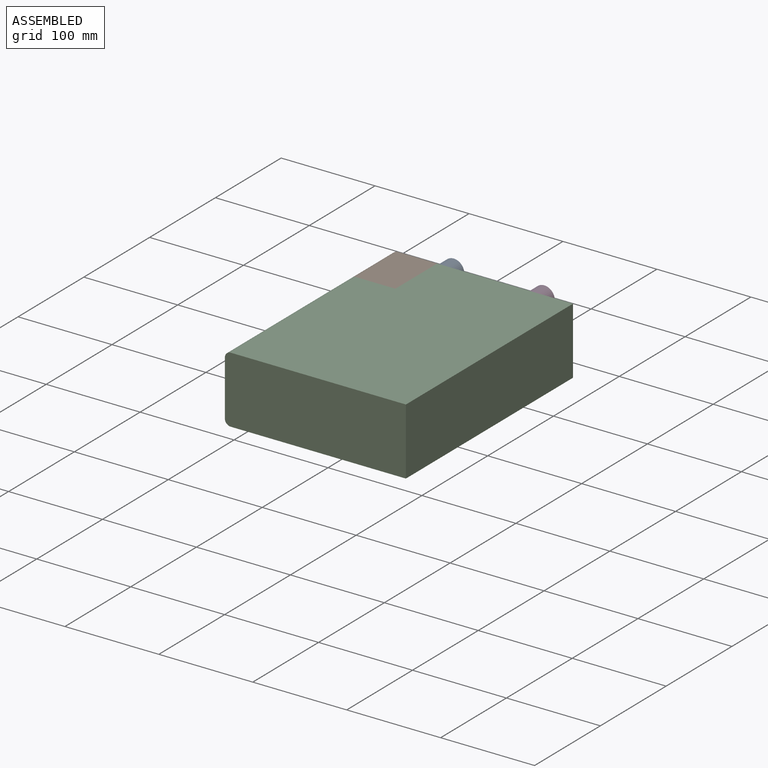
[diagram: assembled view]
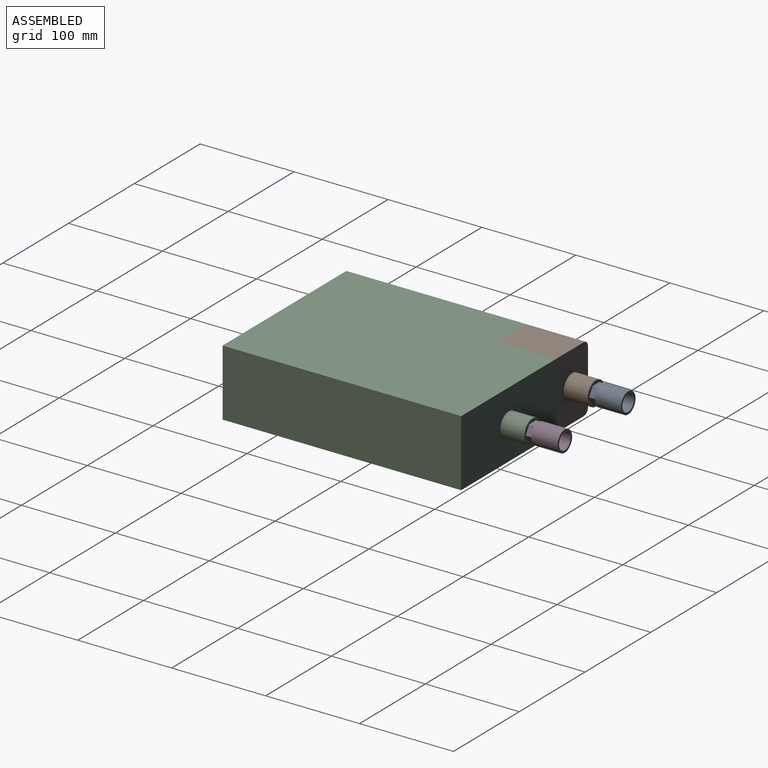
[diagram: assembled view, second angle]
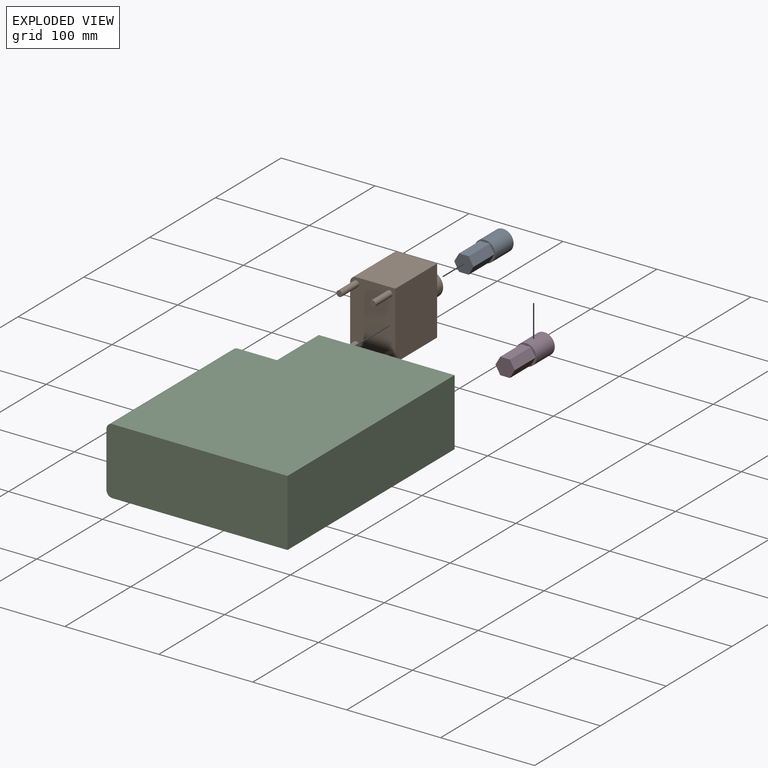
[diagram: exploded view]
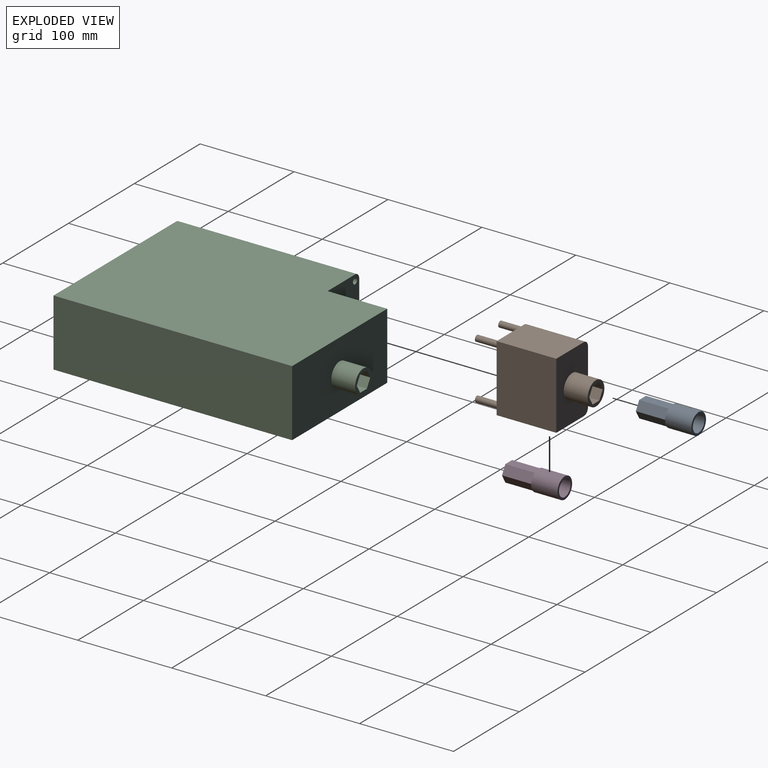
[diagram: exploded view, second angle]
ASSEMBLY  parts=4 mates=3
PART A: 12 faces, bbox 22.3x59.7x22.3 mm
  f0: plane 31.75x8.89mm, normal (-0.87,0,-0.5), area 325.9mm2, adj f1,f5,f6,f7
  f1: plane 31.75x8.89mm, normal (-0.87,0,0.5), area 325.9mm2, adj f0,f2,f6,f7
  f2: plane 31.75x10.27mm, normal (0,0,1), area 325.9mm2, adj f1,f3,f6,f7
  f3: plane 31.75x8.89mm, normal (0.87,0,0.5), area 325.9mm2, adj f2,f4,f6,f7
  f4: plane 31.75x8.89mm, normal (0.87,0,-0.5), area 325.9mm2, adj f3,f5,f6,f7
  f5: plane 31.75x10.27mm, normal (0,0,-1), area 325.9mm2, adj f0,f4,f6,f7
  f6: plane 20.53x17.78mm, normal (0,-1,0), area 273.8mm2, adj f0,f1,f2,f3,f4,f5
  f7: plane 22.3x22.3mm, normal (0,-1,0), area 116.7mm2, adj f0,f1,f2,f3,f4,f5,f8
  f8: cylinder r=11.15mm len=27.94mm, axis (0,-1,0), area 1957.3mm2, adj f7,f10
  f9: cylinder r=8.79mm len=25.4mm, axis (0,-1,0), area 1403.1mm2, adj f10,f11
  f10: plane 22.3x22.3mm, normal (0,1,0), area 147.7mm2, adj f8,f9
  f11: plane 17.58x17.58mm, normal (0,1,0), area 242.8mm2, adj f9
PART B: 25 faces, bbox 48.2x114.3x71.2 mm
  f0: plane 63.5x41.84mm, normal (0,0,-1), area 2656.9mm2, adj f1,f2,f4,f23
  f1: plane 71.24x63.5mm, normal (1,0,0), area 4523.9mm2, adj f0,f2,f4,f5
  f2: plane 71.24x48.19mm, normal (0,1,0), area 2909.2mm2, adj f0,f1,f3,f5,f12,f23,f24
  f3: plane 63.5x58.54mm, normal (-1,0,0), area 3717.5mm2, adj f2,f4,f23,f24
  f4: plane 71.24x48.19mm, normal (0,-1,0), area 3289.2mm2, adj f0,f1,f3,f5,f15,f17,f19,f21
  f5: plane 63.5x41.84mm, normal (0,0,1), area 2656.9mm2, adj f1,f2,f4,f24
  f6: plane 25.4x10.27mm, normal (0,0,1), area 260.7mm2, adj f7,f11,f13,f14
  f7: plane 25.4x8.89mm, normal (-0.87,0,0.5), area 260.7mm2, adj f6,f8,f13,f14
  f8: plane 25.4x8.89mm, normal (-0.87,0,-0.5), area 260.7mm2, adj f7,f9,f13,f14
  f9: plane 25.4x10.27mm, normal (0,0,-1), area 260.7mm2, adj f8,f10,f13,f14
  f10: plane 25.4x8.89mm, normal (0.87,0,-0.5), area 260.7mm2, adj f9,f11,f13,f14
  f11: plane 25.4x8.89mm, normal (0.87,0,0.5), area 260.7mm2, adj f6,f10,f13,f14
  f12: cylinder r=12.7mm len=25.4mm, axis (0,-1,0), area 2026.8mm2, adj f2,f13
  f13: plane 25.4x25.4mm, normal (0,1,0), area 232.9mm2, adj f6,f7,f8,f9,f10,f11,f12
  f14: plane 20.53x17.78mm, normal (0,1,0), area 273.8mm2, adj f6,f7,f8,f9,f10,f11
  f15: cylinder r=3.17mm len=25.4mm, axis (0,1,0), area 506.7mm2, adj f4,f16
  f16: plane 6.35x6.35mm, normal (0,-1,0), area 31.7mm2, adj f15
  f17: cylinder r=3.17mm len=25.4mm, axis (0,1,0), area 506.7mm2, adj f4,f18
  f18: plane 6.35x6.35mm, normal (0,-1,0), area 31.7mm2, adj f17
  f19: cylinder r=3.17mm len=25.4mm, axis (0,1,0), area 506.7mm2, adj f4,f20
  f20: plane 6.35x6.35mm, normal (0,-1,0), area 31.7mm2, adj f19
  f21: cylinder r=3.17mm len=25.4mm, axis (0,1,0), area 506.7mm2, adj f4,f22
  f22: plane 6.35x6.35mm, normal (0,-1,0), area 31.7mm2, adj f21
  f23: cylinder r=6.35mm len=63.5mm, axis (0,-1,0), area 633.4mm2, adj f0,f2,f3,f4
  f24: cylinder r=6.35mm len=63.5mm, axis (0,-1,0), area 633.4mm2, adj f2,f3,f4,f5
PART C: 27 faces, bbox 192.8x279.4x71.2 mm
  f0: plane 190.5x58.54mm, normal (-1,0,0), area 11152.4mm2, adj f4,f6,f17,f18
  f1: plane 254x186.41mm, normal (0,0,1), area 44691.9mm2, adj f3,f4,f5,f6,f7,f17
  f2: plane 254x186.41mm, normal (0,0,-1), area 44691.9mm2, adj f3,f4,f5,f6,f7,f18
  f3: plane 254x71.24mm, normal (1,0,0), area 18095.6mm2, adj f1,f2,f4,f5
  f4: plane 192.76x71.24mm, normal (0,-1,0), area 13715.6mm2, adj f0,f1,f2,f3,f17,f18
  f5: plane 144.57x71.24mm, normal (0,1,0), area 9793mm2, adj f1,f2,f3,f7,f14
  f6: plane 71.24x48.19mm, normal (0,1,0), area 3289.2mm2, adj f0,f1,f2,f7,f17,f18,f19,f21
  f7: plane 71.24x63.5mm, normal (-1,0,0), area 4523.9mm2, adj f1,f2,f5,f6
  f8: plane 25.4x10.27mm, normal (0,0,1), area 260.7mm2, adj f9,f13,f15,f16
  f9: plane 25.4x8.89mm, normal (-0.87,0,0.5), area 260.7mm2, adj f8,f10,f15,f16
  f10: plane 25.4x8.89mm, normal (-0.87,0,-0.5), area 260.7mm2, adj f9,f11,f15,f16
  f11: plane 25.4x10.27mm, normal (0,0,-1), area 260.7mm2, adj f10,f12,f15,f16
  f12: plane 25.4x8.89mm, normal (0.87,0,-0.5), area 260.7mm2, adj f11,f13,f15,f16
  f13: plane 25.4x8.89mm, normal (0.87,0,0.5), area 260.7mm2, adj f8,f12,f15,f16
  f14: cylinder r=12.7mm len=25.4mm, axis (0,-1,0), area 2026.8mm2, adj f5,f15
  f15: plane 25.4x25.4mm, normal (0,1,0), area 232.9mm2, adj f8,f9,f10,f11,f12,f13,f14
  f16: plane 20.53x17.78mm, normal (0,1,0), area 273.8mm2, adj f8,f9,f10,f11,f12,f13
  f17: cylinder r=6.35mm len=190.5mm, axis (0,-1,0), area 1900.2mm2, adj f0,f1,f4,f6
  f18: cylinder r=6.35mm len=190.5mm, axis (0,1,0), area 1900.2mm2, adj f0,f2,f4,f6
  f19: cylinder r=3.17mm len=25.4mm, axis (0,1,0), area 506.7mm2, adj f6,f20
  f20: plane 6.35x6.35mm, normal (0,1,0), area 31.7mm2, adj f19
  f21: cylinder r=3.17mm len=25.4mm, axis (0,1,0), area 506.7mm2, adj f6,f22
  f22: plane 6.35x6.35mm, normal (0,1,0), area 31.7mm2, adj f21
  f23: cylinder r=3.17mm len=25.4mm, axis (0,1,0), area 506.7mm2, adj f6,f24
  f24: plane 6.35x6.35mm, normal (0,1,0), area 31.7mm2, adj f23
  f25: cylinder r=3.17mm len=25.4mm, axis (0,1,0), area 506.7mm2, adj f6,f26
  f26: plane 6.35x6.35mm, normal (0,1,0), area 31.7mm2, adj f25
PART D: same geometry as A
PLACE A t=(-95.66,28.62,-45.69)mm
PLACE B t=(-95.66,28.62,-45.69)mm
PLACE C t=(-95.66,28.62,-45.69)mm
PLACE D t=(0.73,28.62,-45.69)mm
MATE fastened A.f8 <-> B.f12  axis (0,-1,0) through (-167.94,28.62,-45.69)mm
MATE fastened D.f8 <-> C.f14  axis (0,-1,0) through (-71.56,28.62,-45.69)mm
MATE fastened B.f4 <-> C.f6  axis (0,-1,0) through (-167.82,-34.88,-45.69)mm
